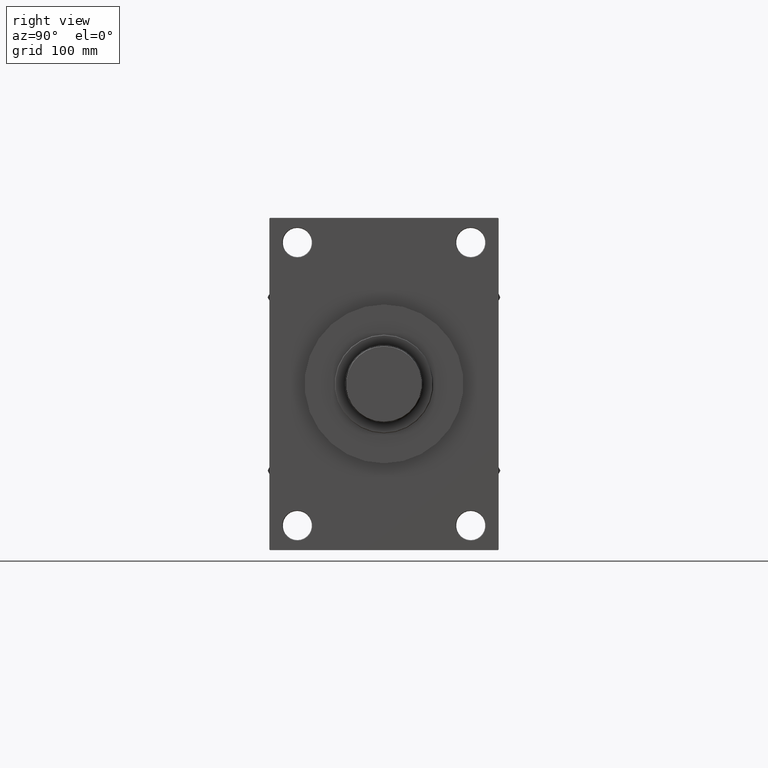
[diagram: clean part render]
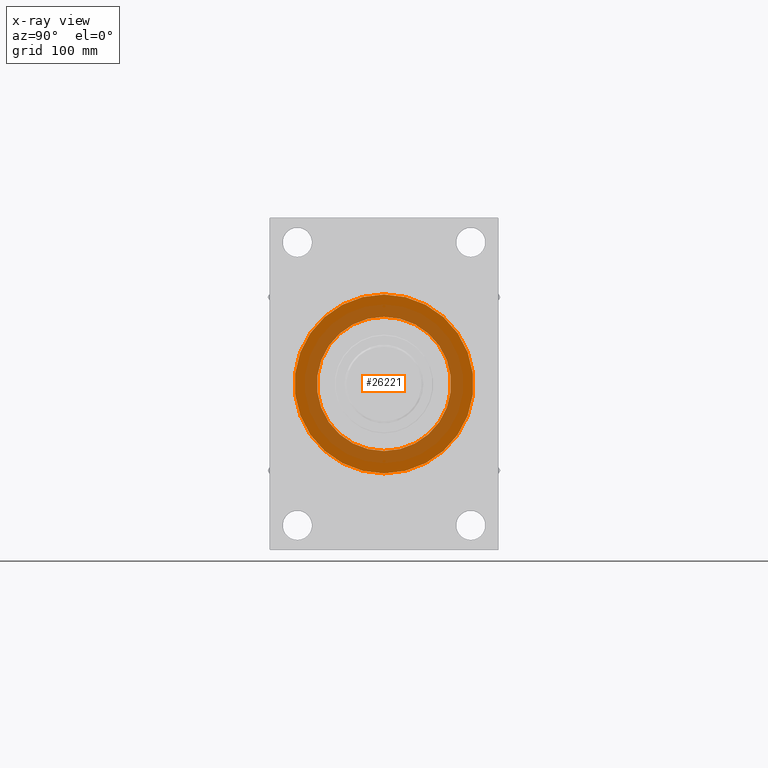
[diagram: x-ray — body ghosted, one internal face saturated and labeled with its STEP entity id]
A machine part, right view, then the same camera in x-ray: the body is ghosted and one INTERNAL B-rep face — a face not visible from any outside direction — is saturated and labeled: STEP entity #26221.
In plain terms, the highlighted planar face has unit normal (-1, 0, 0).
Its self-contained STEP definition (entity closure, byte-faithful):
#239 = EDGE_CURVE ( 'NONE', #9764, #25719, #6107, .T. ) ;
#2659 = PLANE ( 'NONE',  #19579 ) ;
#6107 = CIRCLE ( 'NONE', #12365, 60.00000000000000000 ) ;
#7025 = CARTESIAN_POINT ( 'NONE',  ( 330.0000000000000000, 7.195089179213615410E-15, -80.00000000000000000 ) ) ;
#7360 = ORIENTED_EDGE ( 'NONE', *, *, #47248, .F. ) ;
#9250 = CARTESIAN_POINT ( 'NONE',  ( 330.0000000000000000, 0.000000000000000000, 0.000000000000000000 ) ) ;
#9556 = AXIS2_PLACEMENT_3D ( 'NONE', #24070, #35770, #38943 ) ;
#9764 = VERTEX_POINT ( 'NONE', #17948 ) ;
#10888 = DIRECTION ( 'NONE',  ( 0.000000000000000000, 0.000000000000000000, 1.000000000000000000 ) ) ;
#12365 = AXIS2_PLACEMENT_3D ( 'NONE', #9250, #38336, #20033 ) ;
#12757 = EDGE_LOOP ( 'NONE', ( #13076, #30219 ) ) ;
#13076 = ORIENTED_EDGE ( 'NONE', *, *, #27211, .F. ) ;
#13287 = CARTESIAN_POINT ( 'NONE',  ( 330.0000000000000000, -2.602085213965210642E-15, 0.000000000000000000 ) ) ;
#13478 = CIRCLE ( 'NONE', #9556, 80.00000000000000000 ) ;
#17948 = CARTESIAN_POINT ( 'NONE',  ( 330.0000000000000000, 0.000000000000000000, -60.00000000000000000 ) ) ;
#19579 = AXIS2_PLACEMENT_3D ( 'NONE', #32699, #21699, #37078 ) ;
#20033 = DIRECTION ( 'NONE',  ( 0.000000000000000000, 0.000000000000000000, 1.000000000000000000 ) ) ;
#20354 = AXIS2_PLACEMENT_3D ( 'NONE', #13287, #29161, #43313 ) ;
#21699 = DIRECTION ( 'NONE',  ( -1.000000000000000000, 0.000000000000000000, -0.000000000000000000 ) ) ;
#22706 = CIRCLE ( 'NONE', #20354, 80.00000000000000000 ) ;
#24070 = CARTESIAN_POINT ( 'NONE',  ( 330.0000000000000000, -2.602085213965210642E-15, 0.000000000000000000 ) ) ;
#25719 = VERTEX_POINT ( 'NONE', #26947 ) ;
#26221 = ADVANCED_FACE ( 'NONE', ( #36119, #33188 ), #2659, .T. ) ;
#26947 = CARTESIAN_POINT ( 'NONE',  ( 330.0000000000000000, 7.347880794884118356E-15, 60.00000000000000000 ) ) ;
#27211 = EDGE_CURVE ( 'NONE', #28415, #36528, #22706, .T. ) ;
#27674 = CARTESIAN_POINT ( 'NONE',  ( 330.0000000000000000, -2.602085213965210642E-15, 80.00000000000000000 ) ) ;
#28415 = VERTEX_POINT ( 'NONE', #27674 ) ;
#29161 = DIRECTION ( 'NONE',  ( 1.000000000000000000, 0.000000000000000000, 0.000000000000000000 ) ) ;
#30219 = ORIENTED_EDGE ( 'NONE', *, *, #44271, .F. ) ;
#32316 = CIRCLE ( 'NONE', #34668, 60.00000000000000000 ) ;
#32699 = CARTESIAN_POINT ( 'NONE',  ( 330.0000000000000000, 0.000000000000000000, 0.000000000000000000 ) ) ;
#33188 = FACE_OUTER_BOUND ( 'NONE', #12757, .T. ) ;
#34668 = AXIS2_PLACEMENT_3D ( 'NONE', #36532, #48244, #10888 ) ;
#35770 = DIRECTION ( 'NONE',  ( 1.000000000000000000, 0.000000000000000000, 0.000000000000000000 ) ) ;
#36119 = FACE_BOUND ( 'NONE', #37293, .T. ) ;
#36528 = VERTEX_POINT ( 'NONE', #7025 ) ;
#36532 = CARTESIAN_POINT ( 'NONE',  ( 330.0000000000000000, 0.000000000000000000, 0.000000000000000000 ) ) ;
#37078 = DIRECTION ( 'NONE',  ( -0.000000000000000000, 0.000000000000000000, 1.000000000000000000 ) ) ;
#37293 = EDGE_LOOP ( 'NONE', ( #38446, #7360 ) ) ;
#38336 = DIRECTION ( 'NONE',  ( -1.000000000000000000, 0.000000000000000000, -0.000000000000000000 ) ) ;
#38446 = ORIENTED_EDGE ( 'NONE', *, *, #239, .F. ) ;
#38943 = DIRECTION ( 'NONE',  ( 0.000000000000000000, 0.000000000000000000, -1.000000000000000000 ) ) ;
#43313 = DIRECTION ( 'NONE',  ( 0.000000000000000000, 0.000000000000000000, -1.000000000000000000 ) ) ;
#44271 = EDGE_CURVE ( 'NONE', #36528, #28415, #13478, .T. ) ;
#47248 = EDGE_CURVE ( 'NONE', #25719, #9764, #32316, .T. ) ;
#48244 = DIRECTION ( 'NONE',  ( -1.000000000000000000, 0.000000000000000000, -0.000000000000000000 ) ) ;